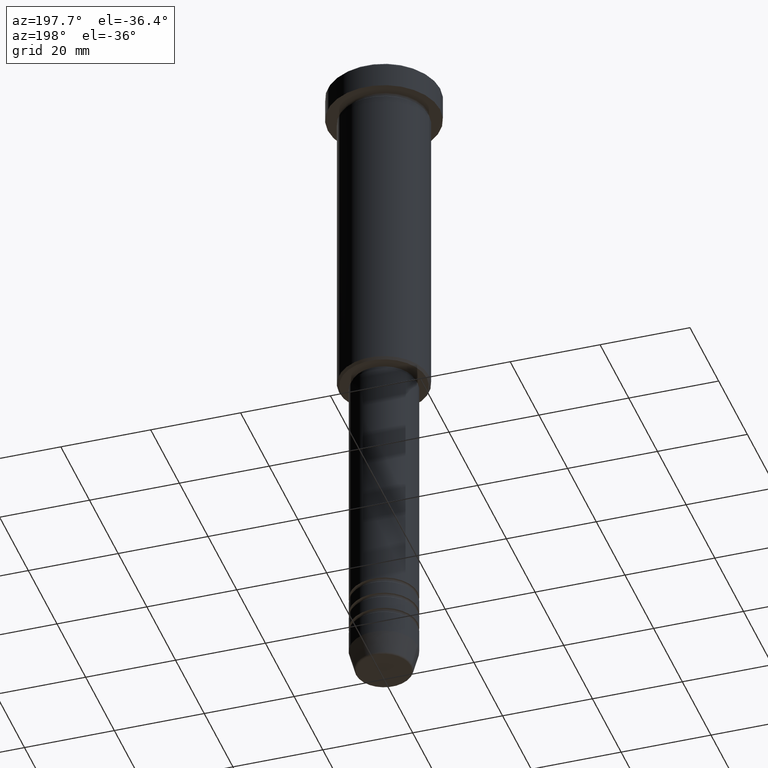
[diagram: clean part render]
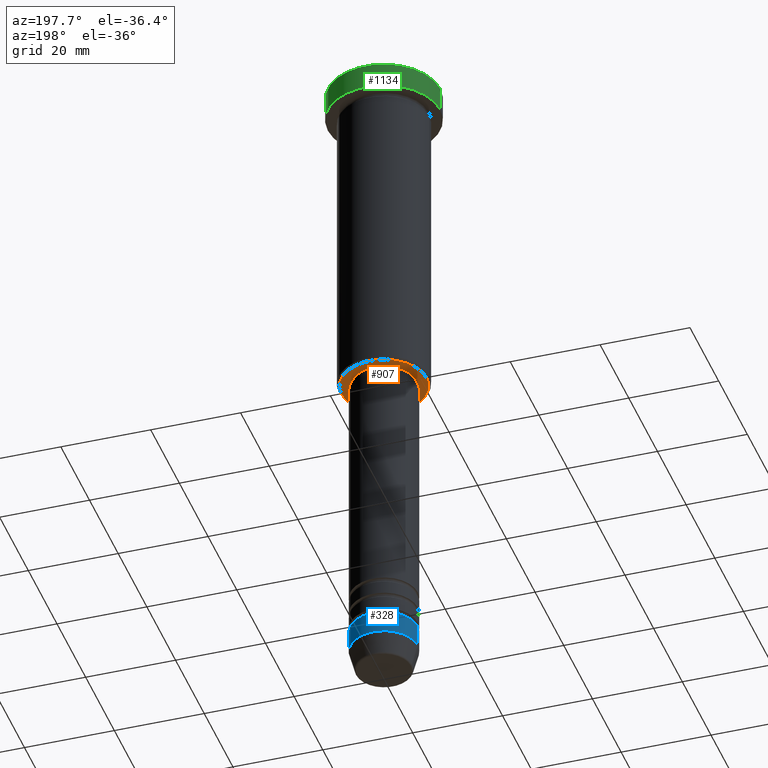
[diagram: same view with three faces highlighted in distinct colors, each labeled with its STEP entity id]
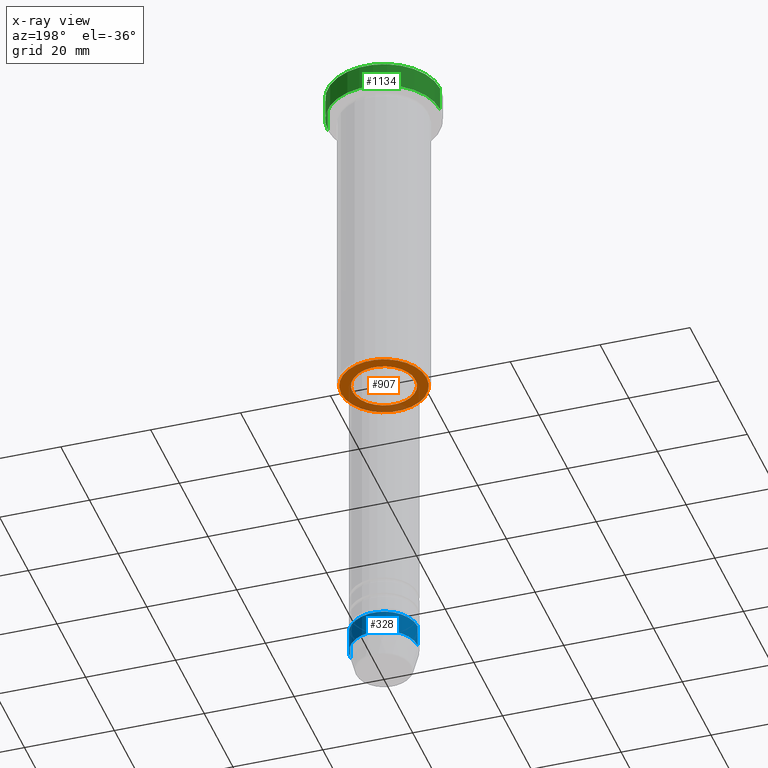
[diagram: x-ray of the same camera — body ghosted, the three highlighted faces saturated]
A machine part, auxiliary view with three faces highlighted in distinct colors.
The next image is the same camera in x-ray (body ghosted, the three faces saturated) — at least one of them is partly hidden behind the body in this view.
Their STEP definitions:

[orange] entity #907 — the highlighted planar face has unit normal (0, 0, -1).
#8 = DIRECTION ( 'NONE',  ( 1.000000000000000000, 0.000000000000000000, 0.000000000000000000 ) ) ;
#47 = CARTESIAN_POINT ( 'NONE',  ( 9.499999999999994671, 0.000000000000000000, -76.00000000000001421 ) ) ;
#60 = CARTESIAN_POINT ( 'NONE',  ( 0.000000000000000000, 0.000000000000000000, -76.00000000000001421 ) ) ;
#78 = CARTESIAN_POINT ( 'NONE',  ( 0.000000000000000000, 10.00000000000000000, -76.00000000000001421 ) ) ;
#82 = DIRECTION ( 'NONE',  ( -1.000000000000000000, 0.000000000000000000, 0.000000000000000000 ) ) ;
#96 = EDGE_CURVE ( 'NONE', #1110, #120, #701, .T. ) ;
#120 = VERTEX_POINT ( 'NONE', #239 ) ;
#176 = CARTESIAN_POINT ( 'NONE',  ( 0.000000000000000000, 0.000000000000000000, -76.00000000000001421 ) ) ;
#182 = FACE_OUTER_BOUND ( 'NONE', #759, .T. ) ;
#239 = CARTESIAN_POINT ( 'NONE',  ( -9.499999999999994671, 1.194030629168669075E-15, -76.00000000000001421 ) ) ;
#334 = DIRECTION ( 'NONE',  ( 0.000000000000000000, 0.000000000000000000, -1.000000000000000000 ) ) ;
#336 = EDGE_CURVE ( 'NONE', #120, #1110, #379, .T. ) ;
#379 = CIRCLE ( 'NONE', #510, 9.499999999999994671 ) ;
#421 = CIRCLE ( 'NONE', #532, 6.999999999999999112 ) ;
#445 = DIRECTION ( 'NONE',  ( 0.000000000000000000, 0.000000000000000000, -1.000000000000000000 ) ) ;
#451 = FACE_BOUND ( 'NONE', #1002, .T. ) ;
#457 = AXIS2_PLACEMENT_3D ( 'NONE', #60, #334, #866 ) ;
#458 = PLANE ( 'NONE',  #1159 ) ;
#487 = ORIENTED_EDGE ( 'NONE', *, *, #96, .T. ) ;
#494 = DIRECTION ( 'NONE',  ( 1.000000000000000000, 0.000000000000000000, 0.000000000000000000 ) ) ;
#510 = AXIS2_PLACEMENT_3D ( 'NONE', #176, #540, #82 ) ;
#532 = AXIS2_PLACEMENT_3D ( 'NONE', #1060, #603, #494 ) ;
#540 = DIRECTION ( 'NONE',  ( 0.000000000000000000, 0.000000000000000000, -1.000000000000000000 ) ) ;
#547 = EDGE_CURVE ( 'NONE', #982, #939, #421, .T. ) ;
#603 = DIRECTION ( 'NONE',  ( -0.000000000000000000, -0.000000000000000000, 1.000000000000000000 ) ) ;
#634 = CARTESIAN_POINT ( 'NONE',  ( 0.000000000000000000, 0.000000000000000000, -76.00000000000001421 ) ) ;
#701 = CIRCLE ( 'NONE', #457, 9.499999999999994671 ) ;
#759 = EDGE_LOOP ( 'NONE', ( #487, #851 ) ) ;
#823 = EDGE_CURVE ( 'NONE', #939, #982, #970, .T. ) ;
#851 = ORIENTED_EDGE ( 'NONE', *, *, #336, .T. ) ;
#866 = DIRECTION ( 'NONE',  ( -1.000000000000000000, 0.000000000000000000, 0.000000000000000000 ) ) ;
#905 = DIRECTION ( 'NONE',  ( -0.000000000000000000, -0.000000000000000000, 1.000000000000000000 ) ) ;
#907 = ADVANCED_FACE ( 'NONE', ( #182, #451 ), #458, .T. ) ;
#939 = VERTEX_POINT ( 'NONE', #1088 ) ;
#970 = CIRCLE ( 'NONE', #1030, 6.999999999999999112 ) ;
#982 = VERTEX_POINT ( 'NONE', #1126 ) ;
#1002 = EDGE_LOOP ( 'NONE', ( #1143, #1133 ) ) ;
#1030 = AXIS2_PLACEMENT_3D ( 'NONE', #634, #905, #8 ) ;
#1060 = CARTESIAN_POINT ( 'NONE',  ( 0.000000000000000000, 0.000000000000000000, -76.00000000000001421 ) ) ;
#1088 = CARTESIAN_POINT ( 'NONE',  ( 6.999999999999999112, 0.000000000000000000, -76.00000000000001421 ) ) ;
#1097 = DIRECTION ( 'NONE',  ( -1.000000000000000000, 0.000000000000000000, -0.000000000000000000 ) ) ;
#1110 = VERTEX_POINT ( 'NONE', #47 ) ;
#1126 = CARTESIAN_POINT ( 'NONE',  ( -6.999999999999999112, 8.572527594031472204E-16, -76.00000000000001421 ) ) ;
#1133 = ORIENTED_EDGE ( 'NONE', *, *, #547, .T. ) ;
#1143 = ORIENTED_EDGE ( 'NONE', *, *, #823, .T. ) ;
#1159 = AXIS2_PLACEMENT_3D ( 'NONE', #78, #445, #1097 ) ;

[blue] entity #328 — the highlighted cylindrical surface (edge-blend (fillet) strip) has radius 7.5 mm, axis along (-0, -0, 1).
#43 = LINE ( 'NONE', #1132, #564 ) ;
#154 = CARTESIAN_POINT ( 'NONE',  ( -7.500000000000000000, 9.184850993605147944E-16, -146.0000000000000284 ) ) ;
#166 = DIRECTION ( 'NONE',  ( -0.000000000000000000, -0.000000000000000000, 1.000000000000000000 ) ) ;
#202 = EDGE_CURVE ( 'NONE', #612, #976, #43, .T. ) ;
#213 = ORIENTED_EDGE ( 'NONE', *, *, #293, .T. ) ;
#249 = EDGE_CURVE ( 'NONE', #713, #976, #1008, .T. ) ;
#251 = DIRECTION ( 'NONE',  ( -0.000000000000000000, -0.000000000000000000, 1.000000000000000000 ) ) ;
#270 = CARTESIAN_POINT ( 'NONE',  ( 7.500000000000000000, 0.000000000000000000, -141.0000000000000000 ) ) ;
#271 = CARTESIAN_POINT ( 'NONE',  ( 0.000000000000000000, 0.000000000000000000, 0.000000000000000000 ) ) ;
#282 = AXIS2_PLACEMENT_3D ( 'NONE', #625, #711, #354 ) ;
#293 = EDGE_CURVE ( 'NONE', #1023, #612, #798, .T. ) ;
#328 = ADVANCED_FACE ( 'NONE', ( #889 ), #1074, .T. ) ;
#354 = DIRECTION ( 'NONE',  ( 1.000000000000000000, 0.000000000000000000, 0.000000000000000000 ) ) ;
#394 = EDGE_LOOP ( 'NONE', ( #213, #988, #561, #1015 ) ) ;
#438 = CARTESIAN_POINT ( 'NONE',  ( 0.000000000000000000, 0.000000000000000000, -141.0000000000000000 ) ) ;
#506 = DIRECTION ( 'NONE',  ( -0.000000000000000000, -0.000000000000000000, 1.000000000000000000 ) ) ;
#561 = ORIENTED_EDGE ( 'NONE', *, *, #249, .F. ) ;
#564 = VECTOR ( 'NONE', #506, 1000.000000000000000 ) ;
#612 = VERTEX_POINT ( 'NONE', #154 ) ;
#625 = CARTESIAN_POINT ( 'NONE',  ( 0.000000000000000000, 0.000000000000000000, -146.0000000000000284 ) ) ;
#669 = CARTESIAN_POINT ( 'NONE',  ( 7.500000000000000000, 0.000000000000000000, -146.0000000000000284 ) ) ;
#687 = LINE ( 'NONE', #1051, #1183 ) ;
#711 = DIRECTION ( 'NONE',  ( -0.000000000000000000, -0.000000000000000000, 1.000000000000000000 ) ) ;
#713 = VERTEX_POINT ( 'NONE', #270 ) ;
#777 = AXIS2_PLACEMENT_3D ( 'NONE', #271, #166, #995 ) ;
#798 = CIRCLE ( 'NONE', #282, 7.500000000000000000 ) ;
#808 = DIRECTION ( 'NONE',  ( -0.000000000000000000, -0.000000000000000000, 1.000000000000000000 ) ) ;
#889 = FACE_OUTER_BOUND ( 'NONE', #394, .T. ) ;
#904 = DIRECTION ( 'NONE',  ( 1.000000000000000000, 0.000000000000000000, 0.000000000000000000 ) ) ;
#976 = VERTEX_POINT ( 'NONE', #1027 ) ;
#988 = ORIENTED_EDGE ( 'NONE', *, *, #202, .T. ) ;
#995 = DIRECTION ( 'NONE',  ( 1.000000000000000000, 0.000000000000000000, 0.000000000000000000 ) ) ;
#1008 = CIRCLE ( 'NONE', #1117, 7.500000000000000000 ) ;
#1015 = ORIENTED_EDGE ( 'NONE', *, *, #1166, .F. ) ;
#1023 = VERTEX_POINT ( 'NONE', #669 ) ;
#1027 = CARTESIAN_POINT ( 'NONE',  ( -7.500000000000000000, 9.184850993605147944E-16, -141.0000000000000000 ) ) ;
#1051 = CARTESIAN_POINT ( 'NONE',  ( 7.500000000000000000, 0.000000000000000000, 0.000000000000000000 ) ) ;
#1074 = CYLINDRICAL_SURFACE ( 'NONE', #777, 7.500000000000000000 ) ;
#1117 = AXIS2_PLACEMENT_3D ( 'NONE', #438, #808, #904 ) ;
#1132 = CARTESIAN_POINT ( 'NONE',  ( -7.500000000000000000, 9.184850993605147944E-16, 0.000000000000000000 ) ) ;
#1166 = EDGE_CURVE ( 'NONE', #1023, #713, #687, .T. ) ;
#1183 = VECTOR ( 'NONE', #251, 1000.000000000000000 ) ;

[green] entity #1134 — the highlighted cylindrical surface (partial cylindrical patch) has radius 12.5 mm, axis along (-0, -0, 1).
#36 = VECTOR ( 'NONE', #474, 1000.000000000000000 ) ;
#41 = CARTESIAN_POINT ( 'NONE',  ( 0.000000000000000000, 0.000000000000000000, -0.5000000000000056621 ) ) ;
#50 = DIRECTION ( 'NONE',  ( 0.000000000000000000, 0.000000000000000000, -1.000000000000000000 ) ) ;
#64 = ORIENTED_EDGE ( 'NONE', *, *, #153, .F. ) ;
#68 = DIRECTION ( 'NONE',  ( 1.000000000000000000, 0.000000000000000000, 0.000000000000000000 ) ) ;
#91 = CIRCLE ( 'NONE', #742, 12.50000000000000000 ) ;
#146 = CARTESIAN_POINT ( 'NONE',  ( 0.000000000000000000, 0.000000000000000000, 0.000000000000000000 ) ) ;
#152 = EDGE_LOOP ( 'NONE', ( #578, #951, #1148, #64 ) ) ;
#153 = EDGE_CURVE ( 'NONE', #1090, #761, #1061, .T. ) ;
#233 = DIRECTION ( 'NONE',  ( -0.000000000000000000, -0.000000000000000000, 1.000000000000000000 ) ) ;
#240 = EDGE_CURVE ( 'NONE', #1090, #1082, #1024, .T. ) ;
#298 = CARTESIAN_POINT ( 'NONE',  ( 12.50000000000000000, 0.000000000000000000, -5.999999999999996447 ) ) ;
#357 = CARTESIAN_POINT ( 'NONE',  ( -12.50000000000000000, 1.530808498934191521E-15, -0.5000000000000056621 ) ) ;
#429 = DIRECTION ( 'NONE',  ( 1.000000000000000000, 0.000000000000000000, 0.000000000000000000 ) ) ;
#474 = DIRECTION ( 'NONE',  ( -0.000000000000000000, -0.000000000000000000, 1.000000000000000000 ) ) ;
#495 = DIRECTION ( 'NONE',  ( -0.000000000000000000, -0.000000000000000000, 1.000000000000000000 ) ) ;
#505 = CYLINDRICAL_SURFACE ( 'NONE', #517, 12.50000000000000000 ) ;
#509 = AXIS2_PLACEMENT_3D ( 'NONE', #916, #1096, #68 ) ;
#517 = AXIS2_PLACEMENT_3D ( 'NONE', #146, #495, #678 ) ;
#529 = CARTESIAN_POINT ( 'NONE',  ( 12.50000000000000000, 0.000000000000000000, -0.5000000000000056621 ) ) ;
#576 = CARTESIAN_POINT ( 'NONE',  ( -12.50000000000000000, 1.530808498934191521E-15, -5.999999999999996447 ) ) ;
#578 = ORIENTED_EDGE ( 'NONE', *, *, #240, .T. ) ;
#617 = EDGE_CURVE ( 'NONE', #690, #761, #91, .T. ) ;
#678 = DIRECTION ( 'NONE',  ( 1.000000000000000000, 0.000000000000000000, 0.000000000000000000 ) ) ;
#690 = VERTEX_POINT ( 'NONE', #357 ) ;
#705 = FACE_OUTER_BOUND ( 'NONE', #152, .T. ) ;
#742 = AXIS2_PLACEMENT_3D ( 'NONE', #41, #50, #429 ) ;
#761 = VERTEX_POINT ( 'NONE', #529 ) ;
#837 = VECTOR ( 'NONE', #233, 1000.000000000000000 ) ;
#916 = CARTESIAN_POINT ( 'NONE',  ( 0.000000000000000000, 0.000000000000000000, -5.999999999999996447 ) ) ;
#929 = CARTESIAN_POINT ( 'NONE',  ( -12.50000000000000000, 1.530808498934191521E-15, 0.000000000000000000 ) ) ;
#951 = ORIENTED_EDGE ( 'NONE', *, *, #962, .T. ) ;
#962 = EDGE_CURVE ( 'NONE', #1082, #690, #1021, .T. ) ;
#1021 = LINE ( 'NONE', #929, #36 ) ;
#1024 = CIRCLE ( 'NONE', #509, 12.50000000000000000 ) ;
#1061 = LINE ( 'NONE', #1155, #837 ) ;
#1082 = VERTEX_POINT ( 'NONE', #576 ) ;
#1090 = VERTEX_POINT ( 'NONE', #298 ) ;
#1096 = DIRECTION ( 'NONE',  ( -0.000000000000000000, -0.000000000000000000, 1.000000000000000000 ) ) ;
#1134 = ADVANCED_FACE ( 'NONE', ( #705 ), #505, .T. ) ;
#1148 = ORIENTED_EDGE ( 'NONE', *, *, #617, .T. ) ;
#1155 = CARTESIAN_POINT ( 'NONE',  ( 12.50000000000000000, 0.000000000000000000, 0.000000000000000000 ) ) ;